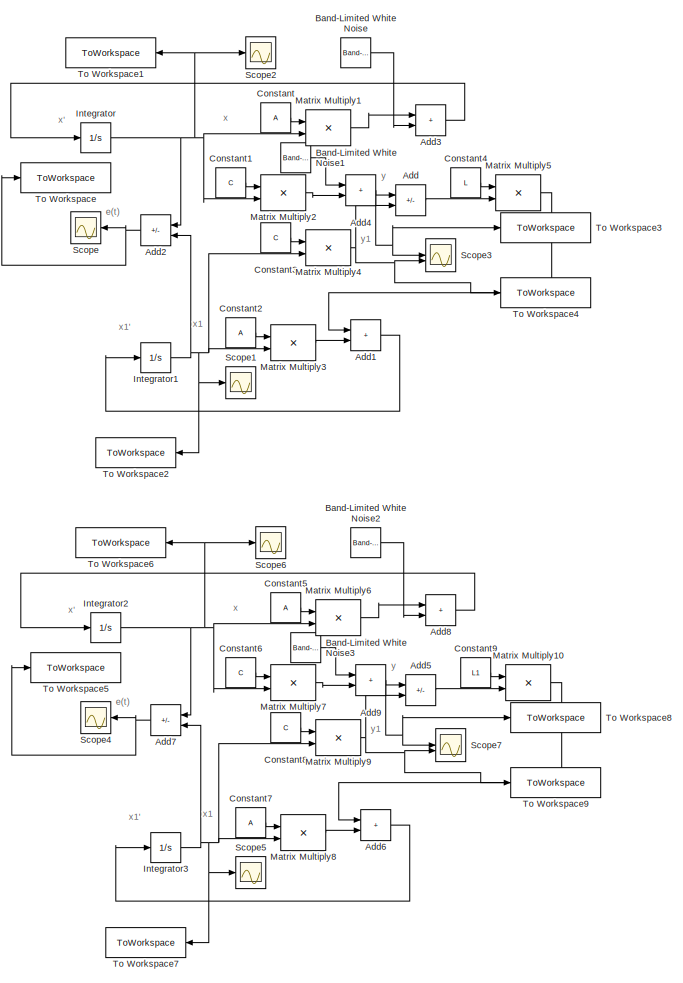
[diagram: root canvas - part 1/2, full width, top band]
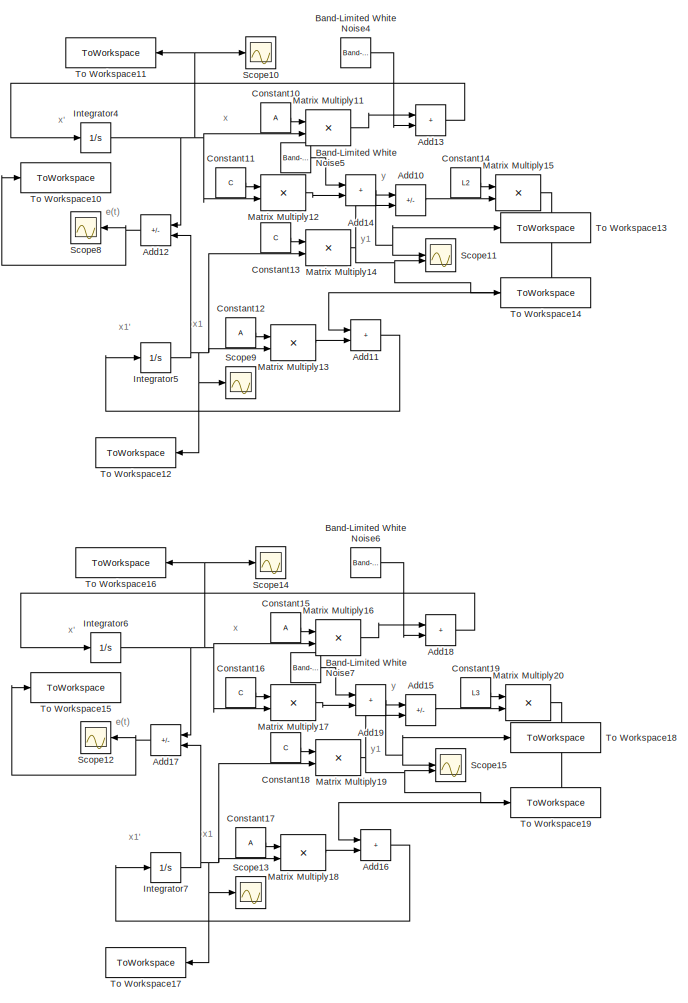
[diagram: root canvas - part 2/2, full width, bottom band]
MODEL slx_fb9e9b595d06
KIND model
CONFIG AbsTol = auto
CONFIG EnableMultiTasking = off
CONFIG FixedStep = 0.01
CONFIG MaxStep = auto
CONFIG MinStep = auto
CONFIG RelTol = 1e-3
CONFIG SampleTimeConstraint = Unconstrained
CONFIG SolverName = FixedStepAuto
CONFIG StartTime = 0.0
CONFIG StopTime = 15
BLOCK [Sum] Add
  IconShape = rectangular
  Inputs = -+
BLOCK [Sum] Add1
  IconShape = rectangular
BLOCK [Sum] Add10
  IconShape = rectangular
  Inputs = -+
BLOCK [Sum] Add11
  IconShape = rectangular
BLOCK [Sum] Add12
  IconShape = rectangular
  Inputs = +-
  NameLocation = top
BLOCK [Sum] Add13
  IconShape = rectangular
BLOCK [Sum] Add14
  IconShape = rectangular
BLOCK [Sum] Add15
  IconShape = rectangular
  Inputs = -+
BLOCK [Sum] Add16
  IconShape = rectangular
BLOCK [Sum] Add17
  IconShape = rectangular
  Inputs = +-
  NameLocation = top
BLOCK [Sum] Add18
  IconShape = rectangular
BLOCK [Sum] Add19
  IconShape = rectangular
BLOCK [Sum] Add2
  IconShape = rectangular
  Inputs = +-
  NameLocation = top
BLOCK [Sum] Add3
  IconShape = rectangular
BLOCK [Sum] Add4
  IconShape = rectangular
BLOCK [Sum] Add5
  IconShape = rectangular
  Inputs = -+
BLOCK [Sum] Add6
  IconShape = rectangular
BLOCK [Sum] Add7
  IconShape = rectangular
  Inputs = +-
  NameLocation = top
BLOCK [Sum] Add8
  IconShape = rectangular
BLOCK [Sum] Add9
  IconShape = rectangular
BLOCK [Reference] Band-Limited White Noise  REF=simulink/Sources/Band-Limited
White Noise
  SourceBlock = simulink/Sources/Band-Limited\nWhite Noise
  SourceType = Band-Limited White Noise.
BLOCK [Reference] Band-Limited White Noise1  REF=simulink/Sources/Band-Limited
White Noise
  SourceBlock = simulink/Sources/Band-Limited\nWhite Noise
  SourceType = Band-Limited White Noise.
BLOCK [Reference] Band-Limited White Noise2  REF=simulink/Sources/Band-Limited
White Noise
  SourceBlock = simulink/Sources/Band-Limited\nWhite Noise
  SourceType = Band-Limited White Noise.
BLOCK [Reference] Band-Limited White Noise3  REF=simulink/Sources/Band-Limited
White Noise
  SourceBlock = simulink/Sources/Band-Limited\nWhite Noise
  SourceType = Band-Limited White Noise.
BLOCK [Reference] Band-Limited White Noise4  REF=simulink/Sources/Band-Limited
White Noise
  SourceBlock = simulink/Sources/Band-Limited\nWhite Noise
  SourceType = Band-Limited White Noise.
BLOCK [Reference] Band-Limited White Noise5  REF=simulink/Sources/Band-Limited
White Noise
  SourceBlock = simulink/Sources/Band-Limited\nWhite Noise
  SourceType = Band-Limited White Noise.
BLOCK [Reference] Band-Limited White Noise6  REF=simulink/Sources/Band-Limited
White Noise
  SourceBlock = simulink/Sources/Band-Limited\nWhite Noise
  SourceType = Band-Limited White Noise.
BLOCK [Reference] Band-Limited White Noise7  REF=simulink/Sources/Band-Limited
White Noise
  SourceBlock = simulink/Sources/Band-Limited\nWhite Noise
  SourceType = Band-Limited White Noise.
BLOCK [Constant] Constant
  Value = A
  VectorParams1D = off
BLOCK [Constant] Constant1
  Value = C
  VectorParams1D = off
BLOCK [Constant] Constant10
  Value = A
  VectorParams1D = off
BLOCK [Constant] Constant11
  Value = C
  VectorParams1D = off
BLOCK [Constant] Constant12
  Value = A
  VectorParams1D = off
BLOCK [Constant] Constant13
  Value = C
  VectorParams1D = off
BLOCK [Constant] Constant14
  Value = L2
  VectorParams1D = off
BLOCK [Constant] Constant15
  Value = A
  VectorParams1D = off
BLOCK [Constant] Constant16
  Value = C
  VectorParams1D = off
BLOCK [Constant] Constant17
  Value = A
  VectorParams1D = off
BLOCK [Constant] Constant18
  Value = C
  VectorParams1D = off
BLOCK [Constant] Constant19
  Value = L3
  VectorParams1D = off
BLOCK [Constant] Constant2
  Value = A
  VectorParams1D = off
BLOCK [Constant] Constant3
  Value = C
  VectorParams1D = off
BLOCK [Constant] Constant4
  Value = L
  VectorParams1D = off
BLOCK [Constant] Constant5
  Value = A
  VectorParams1D = off
BLOCK [Constant] Constant6
  Value = C
  VectorParams1D = off
BLOCK [Constant] Constant7
  Value = A
  VectorParams1D = off
BLOCK [Constant] Constant8
  Value = C
  VectorParams1D = off
BLOCK [Constant] Constant9
  Value = L1
  VectorParams1D = off
BLOCK [Integrator] Integrator
  InitialCondition = x0
BLOCK [Integrator] Integrator1
  InitialCondition = x1
BLOCK [Integrator] Integrator2
  InitialCondition = x0
BLOCK [Integrator] Integrator3
  InitialCondition = x1
BLOCK [Integrator] Integrator4
  InitialCondition = x0
BLOCK [Integrator] Integrator5
  InitialCondition = x1
BLOCK [Integrator] Integrator6
  InitialCondition = x0
BLOCK [Integrator] Integrator7
  InitialCondition = x1
BLOCK [Product] Matrix Multiply1
  Multiplication = Matrix(*)
BLOCK [Product] Matrix Multiply10
  Multiplication = Matrix(*)
BLOCK [Product] Matrix Multiply11
  Multiplication = Matrix(*)
BLOCK [Product] Matrix Multiply12
  Multiplication = Matrix(*)
BLOCK [Product] Matrix Multiply13
  Multiplication = Matrix(*)
BLOCK [Product] Matrix Multiply14
  Multiplication = Matrix(*)
BLOCK [Product] Matrix Multiply15
  Multiplication = Matrix(*)
BLOCK [Product] Matrix Multiply16
  Multiplication = Matrix(*)
BLOCK [Product] Matrix Multiply17
  Multiplication = Matrix(*)
BLOCK [Product] Matrix Multiply18
  Multiplication = Matrix(*)
BLOCK [Product] Matrix Multiply19
  Multiplication = Matrix(*)
BLOCK [Product] Matrix Multiply2
  Multiplication = Matrix(*)
BLOCK [Product] Matrix Multiply20
  Multiplication = Matrix(*)
BLOCK [Product] Matrix Multiply3
  Multiplication = Matrix(*)
BLOCK [Product] Matrix Multiply4
  Multiplication = Matrix(*)
BLOCK [Product] Matrix Multiply5
  Multiplication = Matrix(*)
BLOCK [Product] Matrix Multiply6
  Multiplication = Matrix(*)
BLOCK [Product] Matrix Multiply7
  Multiplication = Matrix(*)
BLOCK [Product] Matrix Multiply8
  Multiplication = Matrix(*)
BLOCK [Product] Matrix Multiply9
  Multiplication = Matrix(*)
BLOCK [Scope] Scope
  Floating = off
  NameLocation = top
  NumInputPorts = 1
  ScopeSpecificationString = Simulink.scopes.TimeScopeBlockCfg('CurrentConfiguration', extmgr.ConfigurationSet(extmgr.Configuration('Core','General UI',true),extmgr.Configuration('Core','Source UI',true),extmgr.Configuration('Sources','WiredSimulink',true,'DataLoggingVariableName','ScopeData1'),extmgr.Configuration('Visuals','Time Domain',true,'SerializedDisplays',{struct('MinYLimReal','-86.24754','MaxYLimReal','61.43996','YL...<+1398ch>
BLOCK [Scope] Scope1
  Floating = off
  NumInputPorts = 1
  ScopeSpecificationString = Simulink.scopes.TimeScopeBlockCfg('CurrentConfiguration', extmgr.ConfigurationSet(extmgr.Configuration('Core','General UI',true),extmgr.Configuration('Core','Source UI',true),extmgr.Configuration('Sources','WiredSimulink',true,'DataLoggingVariableName','ScopeData2'),extmgr.Configuration('Visuals','Time Domain',true,'SerializedDisplays',{struct('MinYLimReal','-85.64445','MaxYLimReal','110.30296','Y...<+1430ch>
BLOCK [Scope] Scope10
  Floating = off
  NumInputPorts = 1
  ScopeSpecificationString = Simulink.scopes.TimeScopeBlockCfg('CurrentConfiguration', extmgr.ConfigurationSet(extmgr.Configuration('Core','General UI',true),extmgr.Configuration('Core','Source UI',true),extmgr.Configuration('Sources','WiredSimulink',true,'DataLoggingVariableName','ScopeData5'),extmgr.Configuration('Visuals','Time Domain',true,'SerializedDisplays',{struct('MinYLimReal','-29.05207','MaxYLimReal','29.89416','YL...<+1422ch>
BLOCK [Scope] Scope11
  Floating = off
  NumInputPorts = 2
  ScopeSpecificationString = Simulink.scopes.TimeScopeBlockCfg('CurrentConfiguration', extmgr.ConfigurationSet(extmgr.Configuration('Core','General UI',true),extmgr.Configuration('Core','Source UI',true),extmgr.Configuration('Sources','WiredSimulink',true,'DataLoggingVariableName','ScopeData6'),extmgr.Configuration('Visuals','Time Domain',true,'SerializedDisplays',{struct('MinYLimReal','-102.80724','MaxYLimReal','119.751','YL...<+1422ch>
BLOCK [Scope] Scope12
  Floating = off
  NameLocation = top
  NumInputPorts = 1
  ScopeSpecificationString = Simulink.scopes.TimeScopeBlockCfg('CurrentConfiguration', extmgr.ConfigurationSet(extmgr.Configuration('Core','General UI',true),extmgr.Configuration('Core','Source UI',true),extmgr.Configuration('Sources','WiredSimulink',true,'DataLoggingVariableName','ScopeData9'),extmgr.Configuration('Visuals','Time Domain',true,'SerializedDisplays',{struct('MinYLimReal','-86.24754','MaxYLimReal','61.43996','YL...<+1398ch>
BLOCK [Scope] Scope13
  Floating = off
  NumInputPorts = 1
  ScopeSpecificationString = Simulink.scopes.TimeScopeBlockCfg('CurrentConfiguration', extmgr.ConfigurationSet(extmgr.Configuration('Core','General UI',true),extmgr.Configuration('Core','Source UI',true),extmgr.Configuration('Sources','WiredSimulink',true,'DataLoggingVariableName','ScopeData10'),extmgr.Configuration('Visuals','Time Domain',true,'SerializedDisplays',{struct('MinYLimReal','-85.64445','MaxYLimReal','110.30296','...<+1431ch>
BLOCK [Scope] Scope14
  Floating = off
  NumInputPorts = 1
  ScopeSpecificationString = Simulink.scopes.TimeScopeBlockCfg('CurrentConfiguration', extmgr.ConfigurationSet(extmgr.Configuration('Core','General UI',true),extmgr.Configuration('Core','Source UI',true),extmgr.Configuration('Sources','WiredSimulink',true,'DataLoggingVariableName','ScopeData11'),extmgr.Configuration('Visuals','Time Domain',true,'SerializedDisplays',{struct('MinYLimReal','-29.05207','MaxYLimReal','29.89416','Y...<+1423ch>
BLOCK [Scope] Scope15
  Floating = off
  NumInputPorts = 2
  ScopeSpecificationString = Simulink.scopes.TimeScopeBlockCfg('CurrentConfiguration', extmgr.ConfigurationSet(extmgr.Configuration('Core','General UI',true),extmgr.Configuration('Core','Source UI',true),extmgr.Configuration('Sources','WiredSimulink',true,'DataLoggingVariableName','ScopeData12'),extmgr.Configuration('Visuals','Time Domain',true,'SerializedDisplays',{struct('MinYLimReal','-102.80724','MaxYLimReal','119.751','Y...<+1423ch>
BLOCK [Scope] Scope2
  Floating = off
  NumInputPorts = 1
  ScopeSpecificationString = Simulink.scopes.TimeScopeBlockCfg('CurrentConfiguration', extmgr.ConfigurationSet(extmgr.Configuration('Core','General UI',true),extmgr.Configuration('Core','Source UI',true),extmgr.Configuration('Sources','WiredSimulink',true),extmgr.Configuration('Visuals','Time Domain',true,'SerializedDisplays',{struct('MinYLimReal','-29.05207','MaxYLimReal','29.89416','YLabelReal','','MinYLimMag','0.00000','Ma...<+1383ch>
BLOCK [Scope] Scope3
  Floating = off
  NumInputPorts = 2
  ScopeSpecificationString = Simulink.scopes.TimeScopeBlockCfg('CurrentConfiguration', extmgr.ConfigurationSet(extmgr.Configuration('Core','General UI',true),extmgr.Configuration('Core','Source UI',true),extmgr.Configuration('Sources','WiredSimulink',true,'DataLoggingVariableName','ScopeData3'),extmgr.Configuration('Visuals','Time Domain',true,'SerializedDisplays',{struct('MinYLimReal','-102.80724','MaxYLimReal','119.751','YL...<+1422ch>
BLOCK [Scope] Scope4
  Floating = off
  NameLocation = top
  NumInputPorts = 1
  ScopeSpecificationString = Simulink.scopes.TimeScopeBlockCfg('CurrentConfiguration', extmgr.ConfigurationSet(extmgr.Configuration('Core','General UI',true),extmgr.Configuration('Core','Source UI',true),extmgr.Configuration('Sources','WiredSimulink',true,'DataLoggingVariableName','ScopeData1'),extmgr.Configuration('Visuals','Time Domain',true,'SerializedDisplays',{struct('MinYLimReal','-86.24754','MaxYLimReal','61.43996','YL...<+1398ch>
BLOCK [Scope] Scope5
  Floating = off
  NumInputPorts = 1
  ScopeSpecificationString = Simulink.scopes.TimeScopeBlockCfg('CurrentConfiguration', extmgr.ConfigurationSet(extmgr.Configuration('Core','General UI',true),extmgr.Configuration('Core','Source UI',true),extmgr.Configuration('Sources','WiredSimulink',true,'DataLoggingVariableName','ScopeData2'),extmgr.Configuration('Visuals','Time Domain',true,'SerializedDisplays',{struct('MinYLimReal','-85.64445','MaxYLimReal','110.30296','Y...<+1430ch>
BLOCK [Scope] Scope6
  Floating = off
  NumInputPorts = 1
  ScopeSpecificationString = Simulink.scopes.TimeScopeBlockCfg('CurrentConfiguration', extmgr.ConfigurationSet(extmgr.Configuration('Core','General UI',true),extmgr.Configuration('Core','Source UI',true),extmgr.Configuration('Sources','WiredSimulink',true,'DataLoggingVariableName','ScopeData3'),extmgr.Configuration('Visuals','Time Domain',true,'SerializedDisplays',{struct('MinYLimReal','-29.05207','MaxYLimReal','29.89416','YL...<+1422ch>
BLOCK [Scope] Scope7
  Floating = off
  NumInputPorts = 2
  ScopeSpecificationString = Simulink.scopes.TimeScopeBlockCfg('CurrentConfiguration', extmgr.ConfigurationSet(extmgr.Configuration('Core','General UI',true),extmgr.Configuration('Core','Source UI',true),extmgr.Configuration('Sources','WiredSimulink',true,'DataLoggingVariableName','ScopeData4'),extmgr.Configuration('Visuals','Time Domain',true,'SerializedDisplays',{struct('MinYLimReal','-102.80724','MaxYLimReal','119.751','YL...<+1422ch>
BLOCK [Scope] Scope8
  Floating = off
  NameLocation = top
  NumInputPorts = 1
  ScopeSpecificationString = Simulink.scopes.TimeScopeBlockCfg('CurrentConfiguration', extmgr.ConfigurationSet(extmgr.Configuration('Core','General UI',true),extmgr.Configuration('Core','Source UI',true),extmgr.Configuration('Sources','WiredSimulink',true,'DataLoggingVariableName','ScopeData7'),extmgr.Configuration('Visuals','Time Domain',true,'SerializedDisplays',{struct('MinYLimReal','-86.24754','MaxYLimReal','61.43996','YL...<+1398ch>
BLOCK [Scope] Scope9
  Floating = off
  NumInputPorts = 1
  ScopeSpecificationString = Simulink.scopes.TimeScopeBlockCfg('CurrentConfiguration', extmgr.ConfigurationSet(extmgr.Configuration('Core','General UI',true),extmgr.Configuration('Core','Source UI',true),extmgr.Configuration('Sources','WiredSimulink',true,'DataLoggingVariableName','ScopeData8'),extmgr.Configuration('Visuals','Time Domain',true,'SerializedDisplays',{struct('MinYLimReal','-85.64445','MaxYLimReal','110.30296','Y...<+1430ch>
BLOCK [ToWorkspace] To Workspace
  FixptAsFi = on
  MaxDataPoints = inf
  SampleTime = -1
  SaveFormat = Timeseries
  VariableName = e
BLOCK [ToWorkspace] To Workspace1
  FixptAsFi = on
  MaxDataPoints = inf
  NameLocation = top
  SampleTime = -1
  SaveFormat = Timeseries
  VariableName = x
BLOCK [ToWorkspace] To Workspace10
  FixptAsFi = on
  MaxDataPoints = inf
  SampleTime = -1
  SaveFormat = Timeseries
  VariableName = e2
BLOCK [ToWorkspace] To Workspace11
  FixptAsFi = on
  MaxDataPoints = inf
  NameLocation = top
  SampleTime = -1
  SaveFormat = Timeseries
  VariableName = x2
BLOCK [ToWorkspace] To Workspace12
  FixptAsFi = on
  MaxDataPoints = inf
  NameLocation = top
  SampleTime = -1
  SaveFormat = Timeseries
  VariableName = xx2
BLOCK [ToWorkspace] To Workspace13
  FixptAsFi = on
  MaxDataPoints = inf
  SampleTime = -1
  SaveFormat = Timeseries
  VariableName = y2
BLOCK [ToWorkspace] To Workspace14
  FixptAsFi = on
  MaxDataPoints = inf
  SampleTime = -1
  SaveFormat = Timeseries
  VariableName = yy2
BLOCK [ToWorkspace] To Workspace15
  FixptAsFi = on
  MaxDataPoints = inf
  SampleTime = -1
  SaveFormat = Timeseries
  VariableName = e3
BLOCK [ToWorkspace] To Workspace16
  FixptAsFi = on
  MaxDataPoints = inf
  NameLocation = top
  SampleTime = -1
  SaveFormat = Timeseries
  VariableName = x3
BLOCK [ToWorkspace] To Workspace17
  FixptAsFi = on
  MaxDataPoints = inf
  NameLocation = top
  SampleTime = -1
  SaveFormat = Timeseries
  VariableName = xx3
BLOCK [ToWorkspace] To Workspace18
  FixptAsFi = on
  MaxDataPoints = inf
  SampleTime = -1
  SaveFormat = Timeseries
  VariableName = y3
BLOCK [ToWorkspace] To Workspace19
  FixptAsFi = on
  MaxDataPoints = inf
  SampleTime = -1
  SaveFormat = Timeseries
  VariableName = yy3
BLOCK [ToWorkspace] To Workspace2
  FixptAsFi = on
  MaxDataPoints = inf
  NameLocation = top
  SampleTime = -1
  SaveFormat = Timeseries
  VariableName = xx
BLOCK [ToWorkspace] To Workspace3
  FixptAsFi = on
  MaxDataPoints = inf
  SampleTime = -1
  SaveFormat = Timeseries
  VariableName = y
BLOCK [ToWorkspace] To Workspace4
  FixptAsFi = on
  MaxDataPoints = inf
  SampleTime = -1
  SaveFormat = Timeseries
  VariableName = yy
BLOCK [ToWorkspace] To Workspace5
  FixptAsFi = on
  MaxDataPoints = inf
  SampleTime = -1
  SaveFormat = Timeseries
  VariableName = e1
BLOCK [ToWorkspace] To Workspace6
  FixptAsFi = on
  MaxDataPoints = inf
  NameLocation = top
  SampleTime = -1
  SaveFormat = Timeseries
  VariableName = x1
BLOCK [ToWorkspace] To Workspace7
  FixptAsFi = on
  MaxDataPoints = inf
  NameLocation = top
  SampleTime = -1
  SaveFormat = Timeseries
  VariableName = xx1
BLOCK [ToWorkspace] To Workspace8
  FixptAsFi = on
  MaxDataPoints = inf
  SampleTime = -1
  SaveFormat = Timeseries
  VariableName = y1
BLOCK [ToWorkspace] To Workspace9
  FixptAsFi = on
  MaxDataPoints = inf
  SampleTime = -1
  SaveFormat = Timeseries
  VariableName = yy1
ANNOTATION (root): e(t)
ANNOTATION (root): x
ANNOTATION (root): x'
ANNOTATION (root): x1
ANNOTATION (root): x1'
ANNOTATION (root): y
ANNOTATION (root): y1
LINE Add10:1 -> Matrix Multiply15:2
LINE Add11:1 -> Integrator5:1
NET Add12:1 -> Scope8:1, To Workspace10:1
LINE Add13:1 -> Integrator4:1
NET Add14:1 -> Add10:1, Scope11:1, To Workspace13:1
LINE Add15:1 -> Matrix Multiply20:2
LINE Add16:1 -> Integrator7:1
NET Add17:1 -> Scope12:1, To Workspace15:1
LINE Add18:1 -> Integrator6:1
NET Add19:1 -> Add15:1, Scope15:1, To Workspace18:1
LINE Add1:1 -> Integrator1:1
NET Add2:1 -> Scope:1, To Workspace:1
LINE Add3:1 -> Integrator:1
NET Add4:1 -> Add:1, Scope3:1, To Workspace3:1
LINE Add5:1 -> Matrix Multiply10:2
LINE Add6:1 -> Integrator3:1
NET Add7:1 -> Scope4:1, To Workspace5:1
LINE Add8:1 -> Integrator2:1
NET Add9:1 -> Add5:1, Scope7:1, To Workspace8:1
LINE Add:1 -> Matrix Multiply5:2
LINE Band-Limited White Noise1:1 -> Add4:1
LINE Band-Limited White Noise2:1 -> Add8:2
LINE Band-Limited White Noise3:1 -> Add9:1
LINE Band-Limited White Noise4:1 -> Add13:2
LINE Band-Limited White Noise5:1 -> Add14:1
LINE Band-Limited White Noise6:1 -> Add18:2
LINE Band-Limited White Noise7:1 -> Add19:1
LINE Band-Limited White Noise:1 -> Add3:2
LINE Constant10:1 -> Matrix Multiply11:1
LINE Constant11:1 -> Matrix Multiply12:1
LINE Constant12:1 -> Matrix Multiply13:1
LINE Constant13:1 -> Matrix Multiply14:1
LINE Constant14:1 -> Matrix Multiply15:1
LINE Constant15:1 -> Matrix Multiply16:1
LINE Constant16:1 -> Matrix Multiply17:1
LINE Constant17:1 -> Matrix Multiply18:1
LINE Constant18:1 -> Matrix Multiply19:1
LINE Constant19:1 -> Matrix Multiply20:1
LINE Constant1:1 -> Matrix Multiply2:1
LINE Constant2:1 -> Matrix Multiply3:1
LINE Constant3:1 -> Matrix Multiply4:1
LINE Constant4:1 -> Matrix Multiply5:1
LINE Constant5:1 -> Matrix Multiply6:1
LINE Constant6:1 -> Matrix Multiply7:1
LINE Constant7:1 -> Matrix Multiply8:1
LINE Constant8:1 -> Matrix Multiply9:1
LINE Constant9:1 -> Matrix Multiply10:1
LINE Constant:1 -> Matrix Multiply1:1
NET Integrator1:1 -> Add2:2, Matrix Multiply3:2, Matrix Multiply4:2, Scope1:1, To Workspace2:1
NET Integrator2:1 -> Add7:1, Matrix Multiply6:2, Matrix Multiply7:2, Scope6:1, To Workspace6:1
NET Integrator3:1 -> Add7:2, Matrix Multiply8:2, Matrix Multiply9:2, Scope5:1, To Workspace7:1
NET Integrator4:1 -> Add12:1, Matrix Multiply11:2, Matrix Multiply12:2, Scope10:1, To Workspace11:1
NET Integrator5:1 -> Add12:2, Matrix Multiply13:2, Matrix Multiply14:2, Scope9:1, To Workspace12:1
NET Integrator6:1 -> Add17:1, Matrix Multiply16:2, Matrix Multiply17:2, Scope14:1, To Workspace16:1
NET Integrator7:1 -> Add17:2, Matrix Multiply18:2, Matrix Multiply19:2, Scope13:1, To Workspace17:1
NET Integrator:1 -> Add2:1, Matrix Multiply1:2, Matrix Multiply2:2, Scope2:1, To Workspace1:1
LINE Matrix Multiply10:1 -> Add6:1
LINE Matrix Multiply11:1 -> Add13:1
LINE Matrix Multiply12:1 -> Add14:2
LINE Matrix Multiply13:1 -> Add11:2
NET Matrix Multiply14:1 -> Add10:2, Scope11:2, To Workspace14:1
LINE Matrix Multiply15:1 -> Add11:1
LINE Matrix Multiply16:1 -> Add18:1
LINE Matrix Multiply17:1 -> Add19:2
LINE Matrix Multiply18:1 -> Add16:2
NET Matrix Multiply19:1 -> Add15:2, Scope15:2, To Workspace19:1
LINE Matrix Multiply1:1 -> Add3:1
LINE Matrix Multiply20:1 -> Add16:1
LINE Matrix Multiply2:1 -> Add4:2
LINE Matrix Multiply3:1 -> Add1:2
NET Matrix Multiply4:1 -> Add:2, Scope3:2, To Workspace4:1
LINE Matrix Multiply5:1 -> Add1:1
LINE Matrix Multiply6:1 -> Add8:1
LINE Matrix Multiply7:1 -> Add9:2
LINE Matrix Multiply8:1 -> Add6:2
NET Matrix Multiply9:1 -> Add5:2, Scope7:2, To Workspace9:1
note: NET lines group one-source signal fan-out (src -> all destinations, sorted); 1:1 wires keep LINE
